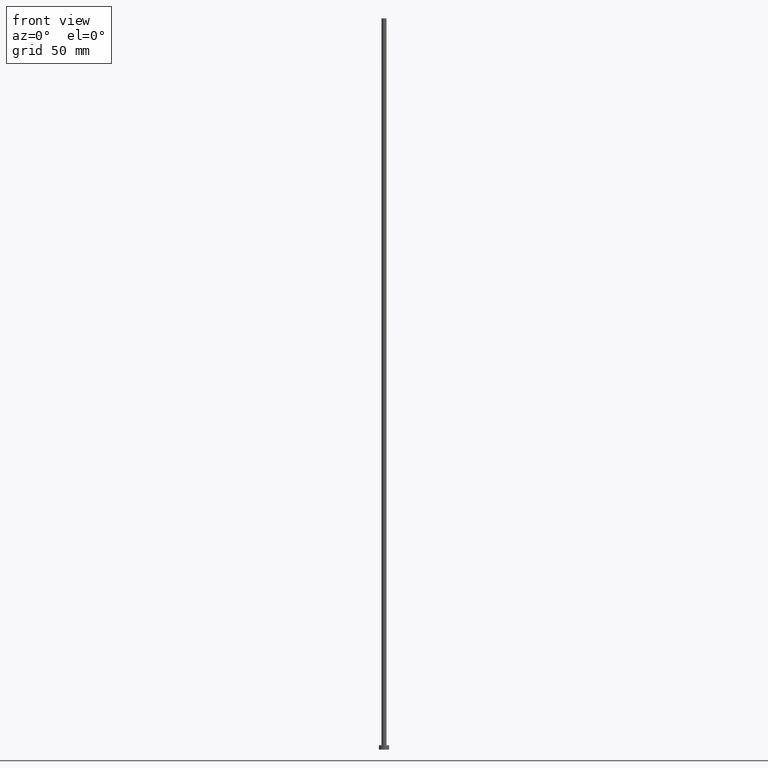
[diagram: clean part render]
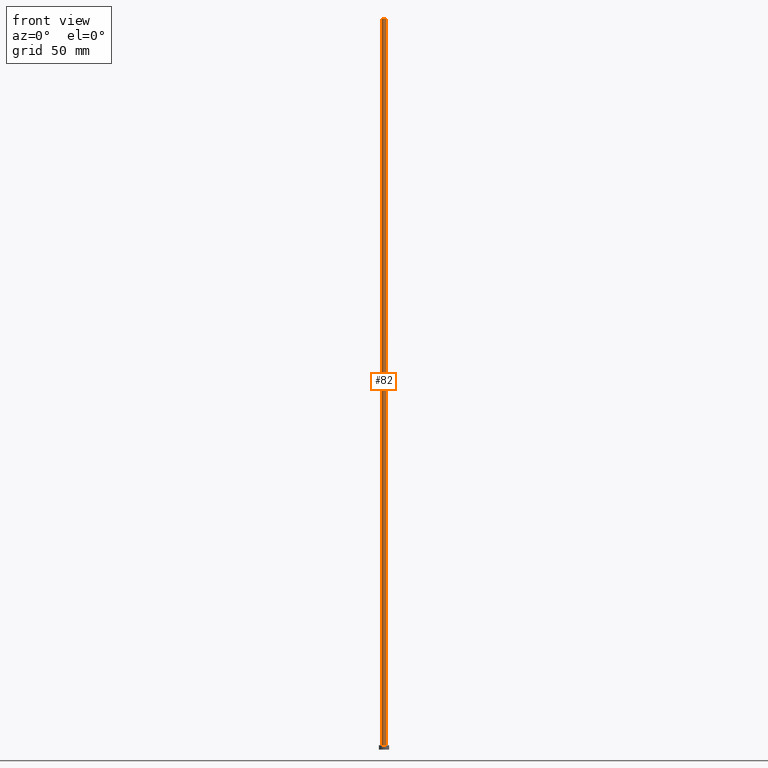
[diagram: same view with one face highlighted and labeled with its STEP entity id]
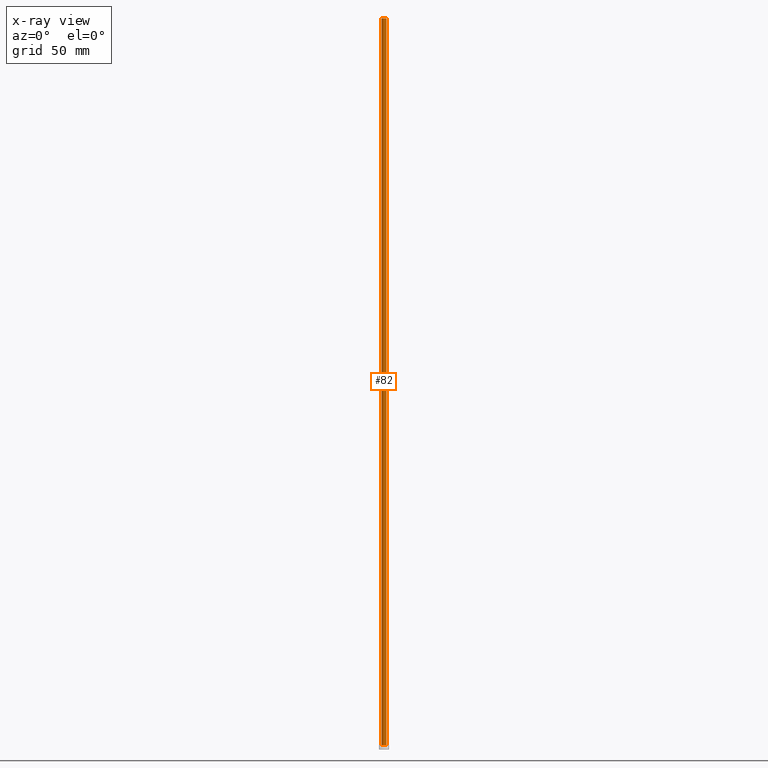
[diagram: x-ray of the same camera — body ghosted, the highlighted face saturated]
A machine part, front view. The second image highlights one B-rep face of the part: STEP entity #82.
The next image is the same camera in x-ray: the body ghosted, the highlighted face saturated — about 0% of this face is hidden behind the body in this view.
In plain terms, the highlighted cylindrical surface (edge-blend (fillet) strip) has radius 1.75 mm, axis along (-0, -0, -1).
Its self-contained STEP definition (entity closure, byte-faithful):
#4 = EDGE_CURVE ( 'NONE', #187, #150, #153, .T. ) ;
#6 = FACE_OUTER_BOUND ( 'NONE', #209, .T. ) ;
#8 = DIRECTION ( 'NONE',  ( 1.000000000000000000, 0.000000000000000000, 0.000000000000000000 ) ) ;
#10 = CARTESIAN_POINT ( 'NONE',  ( 1.750000000000000000, 2.143131898507867804E-16, 500.0000000000000000 ) ) ;
#18 = CARTESIAN_POINT ( 'NONE',  ( -1.750000000000000000, 0.000000000000000000, 500.0000000000000000 ) ) ;
#25 = EDGE_CURVE ( 'NONE', #187, #212, #119, .T. ) ;
#31 = LINE ( 'NONE', #10, #113 ) ;
#50 = DIRECTION ( 'NONE',  ( -0.000000000000000000, -0.000000000000000000, -1.000000000000000000 ) ) ;
#51 = VECTOR ( 'NONE', #64, 1000.000000000000000 ) ;
#57 = DIRECTION ( 'NONE',  ( -0.000000000000000000, -0.000000000000000000, -1.000000000000000000 ) ) ;
#64 = DIRECTION ( 'NONE',  ( -0.000000000000000000, -0.000000000000000000, -1.000000000000000000 ) ) ;
#71 = CARTESIAN_POINT ( 'NONE',  ( 0.000000000000000000, 0.000000000000000000, 500.0000000000000000 ) ) ;
#75 = CYLINDRICAL_SURFACE ( 'NONE', #129, 1.750000000000000000 ) ;
#79 = AXIS2_PLACEMENT_3D ( 'NONE', #161, #175, #8 ) ;
#80 = DIRECTION ( 'NONE',  ( 0.000000000000000000, 0.000000000000000000, 1.000000000000000000 ) ) ;
#82 = ADVANCED_FACE ( 'NONE', ( #6 ), #75, .T. ) ;
#101 = ORIENTED_EDGE ( 'NONE', *, *, #4, .T. ) ;
#110 = AXIS2_PLACEMENT_3D ( 'NONE', #252, #80, #189 ) ;
#113 = VECTOR ( 'NONE', #57, 1000.000000000000000 ) ;
#119 = CIRCLE ( 'NONE', #79, 1.750000000000000000 ) ;
#121 = DIRECTION ( 'NONE',  ( -1.000000000000000000, 0.000000000000000000, 0.000000000000000000 ) ) ;
#129 = AXIS2_PLACEMENT_3D ( 'NONE', #71, #50, #121 ) ;
#140 = EDGE_CURVE ( 'NONE', #212, #232, #31, .T. ) ;
#150 = VERTEX_POINT ( 'NONE', #159 ) ;
#153 = LINE ( 'NONE', #18, #51 ) ;
#159 = CARTESIAN_POINT ( 'NONE',  ( -1.750000000000000000, 0.000000000000000000, 3.000000000000000000 ) ) ;
#161 = CARTESIAN_POINT ( 'NONE',  ( 0.000000000000000000, 0.000000000000000000, 500.0000000000000000 ) ) ;
#169 = ORIENTED_EDGE ( 'NONE', *, *, #140, .F. ) ;
#175 = DIRECTION ( 'NONE',  ( 0.000000000000000000, 0.000000000000000000, 1.000000000000000000 ) ) ;
#186 = CARTESIAN_POINT ( 'NONE',  ( -1.750000000000000000, 0.000000000000000000, 500.0000000000000000 ) ) ;
#187 = VERTEX_POINT ( 'NONE', #186 ) ;
#189 = DIRECTION ( 'NONE',  ( 1.000000000000000000, 0.000000000000000000, 0.000000000000000000 ) ) ;
#207 = EDGE_CURVE ( 'NONE', #150, #232, #211, .T. ) ;
#209 = EDGE_LOOP ( 'NONE', ( #169, #233, #101, #221 ) ) ;
#211 = CIRCLE ( 'NONE', #110, 1.750000000000000000 ) ;
#212 = VERTEX_POINT ( 'NONE', #213 ) ;
#213 = CARTESIAN_POINT ( 'NONE',  ( 1.750000000000000000, 2.143131898507867804E-16, 500.0000000000000000 ) ) ;
#221 = ORIENTED_EDGE ( 'NONE', *, *, #207, .T. ) ;
#232 = VERTEX_POINT ( 'NONE', #235 ) ;
#233 = ORIENTED_EDGE ( 'NONE', *, *, #25, .F. ) ;
#235 = CARTESIAN_POINT ( 'NONE',  ( 1.750000000000000000, 2.143131898507867804E-16, 3.000000000000000000 ) ) ;
#252 = CARTESIAN_POINT ( 'NONE',  ( 0.000000000000000000, 0.000000000000000000, 3.000000000000000000 ) ) ;